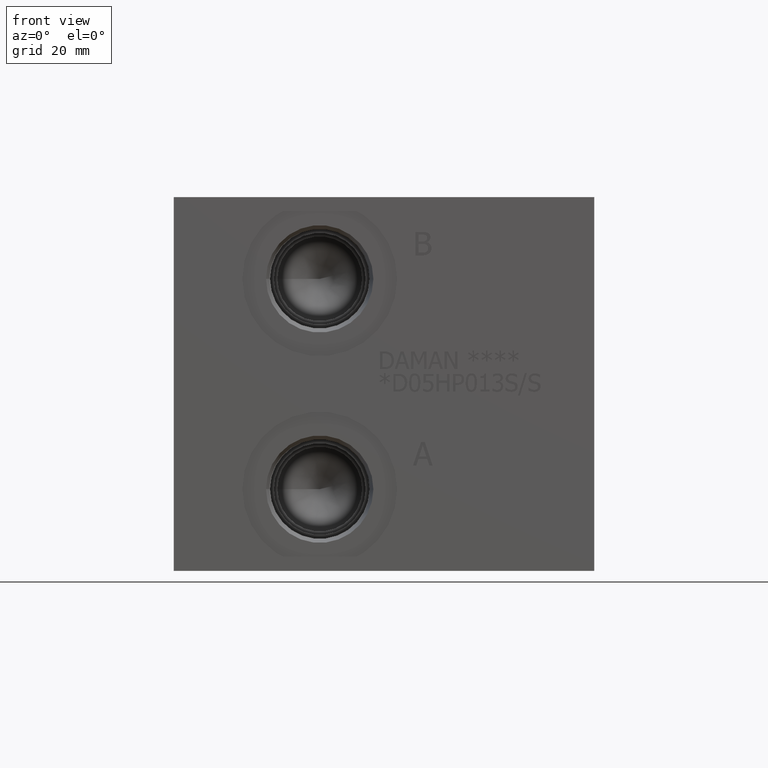
[diagram: clean part render]
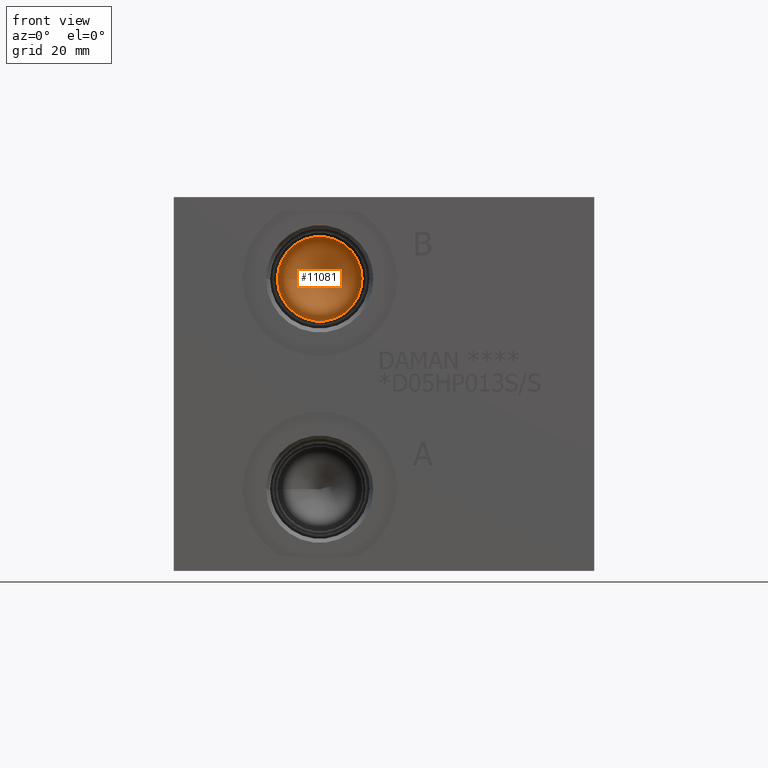
[diagram: same view with one face highlighted and labeled with its STEP entity id]
A machine part, front view. The second image highlights one B-rep face of the part: STEP entity #11081.
In plain terms, the highlighted conical surface has half-angle 60 deg.
Its self-contained STEP definition (entity closure, byte-faithful):
#101=CONICAL_SURFACE('',#11657,5.7531,1.0471975511966);
#252=CIRCLE('',#11658,11.5062);
#253=CIRCLE('',#11659,11.5062);
#1257=FACE_OUTER_BOUND('',#1888,.T.);
#1888=EDGE_LOOP('',(#9706,#9707,#9708,#9709));
#2944=LINE('',#18978,#3969);
#3969=VECTOR('',#13802,5.7531);
#5269=VERTEX_POINT('',#18974);
#5270=VERTEX_POINT('',#18975);
#5271=VERTEX_POINT('',#18977);
#6783=EDGE_CURVE('',#5269,#5270,#252,.T.);
#6784=EDGE_CURVE('',#5270,#5271,#2944,.T.);
#6785=EDGE_CURVE('',#5270,#5269,#253,.T.);
#9706=ORIENTED_EDGE('',*,*,#6783,.T.);
#9707=ORIENTED_EDGE('',*,*,#6784,.T.);
#9708=ORIENTED_EDGE('',*,*,#6784,.F.);
#9709=ORIENTED_EDGE('',*,*,#6785,.T.);
#11081=ADVANCED_FACE('',(#1257),#101,.F.);
#11657=AXIS2_PLACEMENT_3D('',#18973,#13798,#13799);
#11658=AXIS2_PLACEMENT_3D('',#18976,#13800,#13801);
#11659=AXIS2_PLACEMENT_3D('',#18979,#13803,#13804);
#13798=DIRECTION('center_axis',(0.,-1.,0.));
#13799=DIRECTION('ref_axis',(1.,0.,0.));
#13800=DIRECTION('center_axis',(0.,-1.,0.));
#13801=DIRECTION('ref_axis',(1.,0.,0.));
#13802=DIRECTION('',(0.866025403784439,0.5,1.06057523872491E-16));
#13803=DIRECTION('center_axis',(0.,-1.,0.));
#13804=DIRECTION('ref_axis',(1.,0.,0.));
#18973=CARTESIAN_POINT('Origin',(39.6748,34.1885438336748,79.375));
#18974=CARTESIAN_POINT('',(51.181,30.86699,79.375));
#18975=CARTESIAN_POINT('',(28.1686,30.86699,79.375));
#18976=CARTESIAN_POINT('Origin',(39.6748,30.86699,79.375));
#18977=CARTESIAN_POINT('',(39.6748,37.5100976673497,79.375));
#18978=CARTESIAN_POINT('',(33.9217,34.1885438336748,79.375));
#18979=CARTESIAN_POINT('Origin',(39.6748,30.86699,79.375));